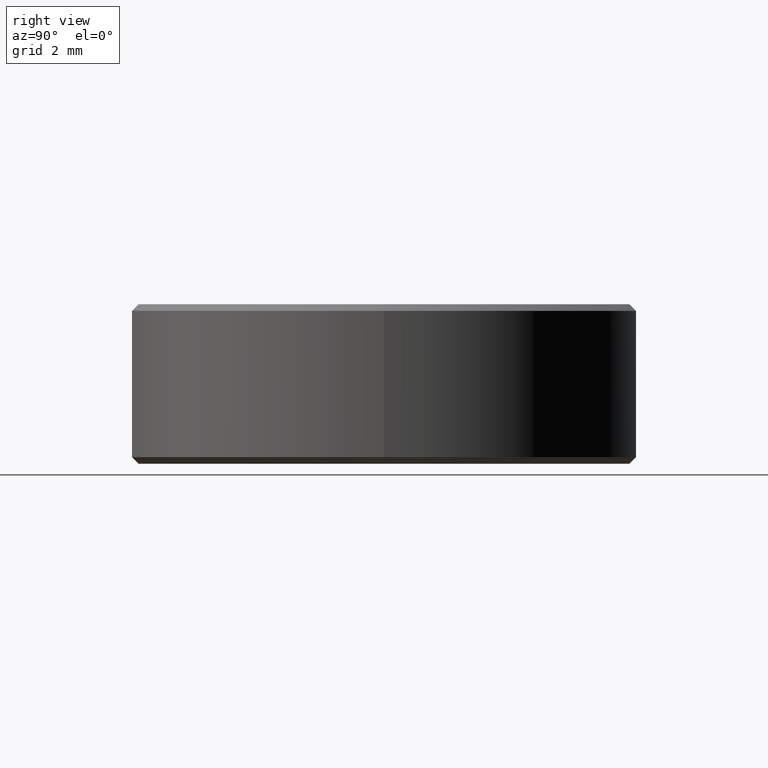
[diagram: clean part render]
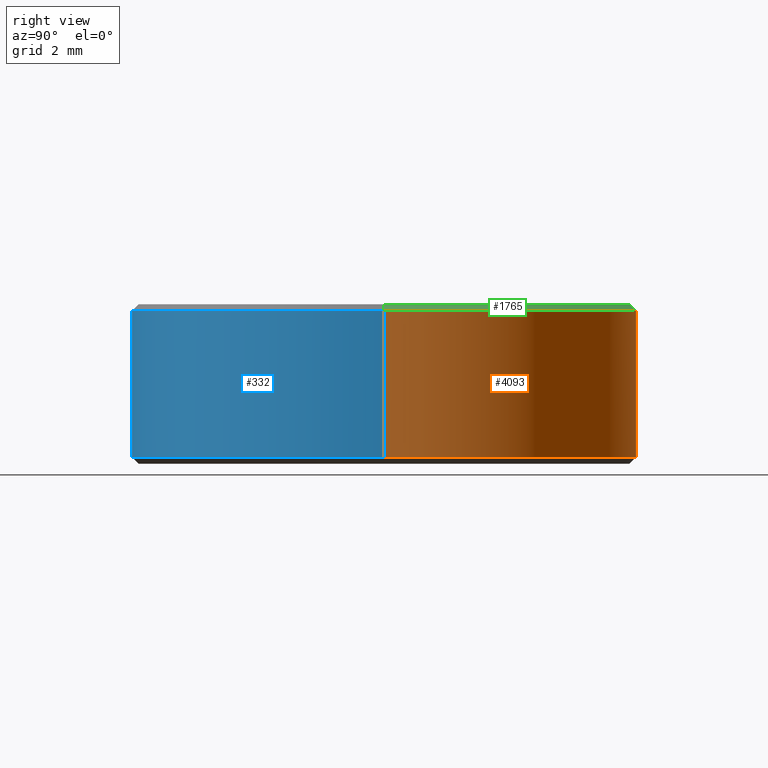
[diagram: same view with three faces highlighted in distinct colors, each labeled with its STEP entity id]
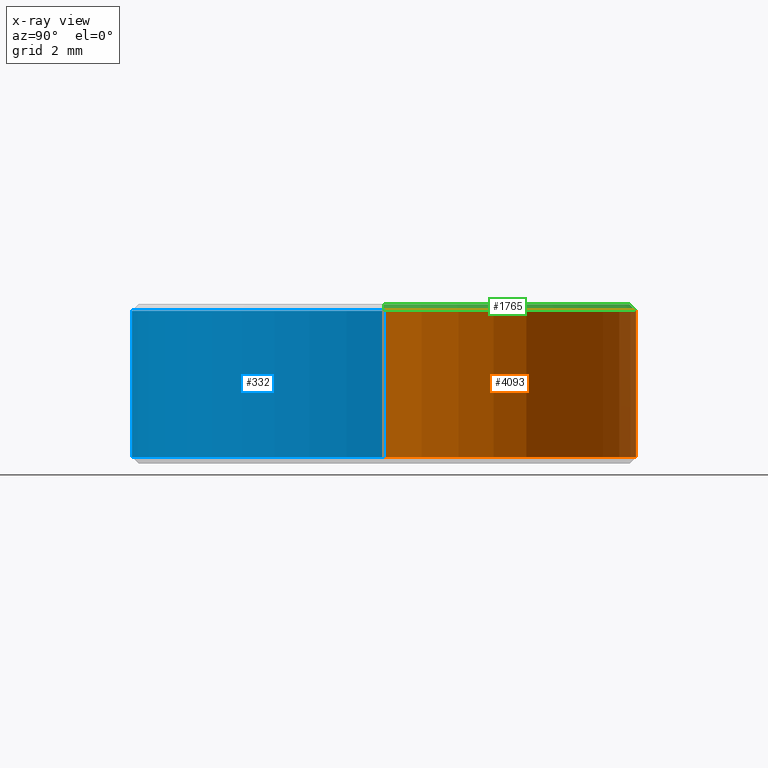
[diagram: x-ray of the same camera — body ghosted, the three highlighted faces saturated]
A machine part, right view with three faces highlighted in distinct colors.
The next image is the same camera in x-ray (body ghosted, the three faces saturated) — at least one of them is partly hidden behind the body in this view.
Their STEP definitions:

[orange] entity #4093 — the highlighted cylindrical surface (partial cylindrical patch) has radius 9.5 mm, axis along (-0, -0, -1).
#32 = ORIENTED_EDGE ( 'NONE', *, *, #6654, .T. ) ;
#287 = CIRCLE ( 'NONE', #3442, 0.3740157480314960600 ) ;
#439 = LINE ( 'NONE', #2743, #6531 ) ;
#462 = EDGE_CURVE ( 'NONE', #6852, #1652, #439, .T. ) ;
#484 = CARTESIAN_POINT ( 'NONE',  ( 0.3740157480314960600, 4.580371886574746100E-017, -0.1082677165354330700 ) ) ;
#637 = CARTESIAN_POINT ( 'NONE',  ( 0.0000000000000000000, 0.0000000000000000000, -0.1082677165354330700 ) ) ;
#784 = EDGE_CURVE ( 'NONE', #3050, #10040, #830, .T. ) ;
#830 = LINE ( 'NONE', #4259, #4783 ) ;
#1033 = DIRECTION ( 'NONE',  ( -0.0000000000000000000, -0.0000000000000000000, -1.000000000000000000 ) ) ;
#1325 = CARTESIAN_POINT ( 'NONE',  ( 0.0000000000000000000, 0.0000000000000000000, 0.1181102362204724500 ) ) ;
#1436 = DIRECTION ( 'NONE',  ( 1.000000000000000000, 0.0000000000000000000, 0.0000000000000000000 ) ) ;
#1652 = VERTEX_POINT ( 'NONE', #484 ) ;
#1663 = AXIS2_PLACEMENT_3D ( 'NONE', #1325, #8464, #9272 ) ;
#2470 = CARTESIAN_POINT ( 'NONE',  ( 0.0000000000000000000, 0.0000000000000000000, 0.1082677165354332000 ) ) ;
#2615 = CIRCLE ( 'NONE', #7795, 0.3740157480314960600 ) ;
#2743 = CARTESIAN_POINT ( 'NONE',  ( 0.3740157480314960600, 4.580371886574746100E-017, 0.1181102362204724500 ) ) ;
#3050 = VERTEX_POINT ( 'NONE', #4649 ) ;
#3265 = DIRECTION ( 'NONE',  ( 1.000000000000000000, 0.0000000000000000000, 0.0000000000000000000 ) ) ;
#3442 = AXIS2_PLACEMENT_3D ( 'NONE', #637, #6181, #1436 ) ;
#3797 = DIRECTION ( 'NONE',  ( -0.0000000000000000000, -0.0000000000000000000, -1.000000000000000000 ) ) ;
#4093 = ADVANCED_FACE ( 'NONE', ( #7949 ), #5813, .T. ) ;
#4259 = CARTESIAN_POINT ( 'NONE',  ( -0.3740157480314960600, 0.0000000000000000000, 0.1181102362204724500 ) ) ;
#4371 = EDGE_LOOP ( 'NONE', ( #32, #5225, #9327, #9508 ) ) ;
#4649 = CARTESIAN_POINT ( 'NONE',  ( -0.3740157480314960600, 0.0000000000000000000, 0.1082677165354332000 ) ) ;
#4783 = VECTOR ( 'NONE', #3797, 39.37007874015748100 ) ;
#5225 = ORIENTED_EDGE ( 'NONE', *, *, #462, .T. ) ;
#5813 = CYLINDRICAL_SURFACE ( 'NONE', #1663, 0.3740157480314960600 ) ;
#6181 = DIRECTION ( 'NONE',  ( -0.0000000000000000000, -0.0000000000000000000, 1.000000000000000000 ) ) ;
#6531 = VECTOR ( 'NONE', #1033, 39.37007874015748100 ) ;
#6654 = EDGE_CURVE ( 'NONE', #3050, #6852, #2615, .T. ) ;
#6695 = CARTESIAN_POINT ( 'NONE',  ( 0.3740157480314960600, 4.580371886574746100E-017, 0.1082677165354332000 ) ) ;
#6852 = VERTEX_POINT ( 'NONE', #6695 ) ;
#7086 = CARTESIAN_POINT ( 'NONE',  ( -0.3740157480314960600, 0.0000000000000000000, -0.1082677165354330700 ) ) ;
#7795 = AXIS2_PLACEMENT_3D ( 'NONE', #2470, #8036, #3265 ) ;
#7949 = FACE_OUTER_BOUND ( 'NONE', #4371, .T. ) ;
#8036 = DIRECTION ( 'NONE',  ( 0.0000000000000000000, 0.0000000000000000000, -1.000000000000000000 ) ) ;
#8154 = EDGE_CURVE ( 'NONE', #1652, #10040, #287, .T. ) ;
#8464 = DIRECTION ( 'NONE',  ( -0.0000000000000000000, -0.0000000000000000000, -1.000000000000000000 ) ) ;
#9272 = DIRECTION ( 'NONE',  ( -1.000000000000000000, 0.0000000000000000000, 0.0000000000000000000 ) ) ;
#9327 = ORIENTED_EDGE ( 'NONE', *, *, #8154, .T. ) ;
#9508 = ORIENTED_EDGE ( 'NONE', *, *, #784, .F. ) ;
#10040 = VERTEX_POINT ( 'NONE', #7086 ) ;

[blue] entity #332 — the highlighted cylindrical surface (partial cylindrical patch) has radius 9.5 mm, axis along (-0, -0, -1).
#332 = ADVANCED_FACE ( 'NONE', ( #9400 ), #957, .T. ) ;
#439 = LINE ( 'NONE', #2743, #6531 ) ;
#462 = EDGE_CURVE ( 'NONE', #6852, #1652, #439, .T. ) ;
#484 = CARTESIAN_POINT ( 'NONE',  ( 0.3740157480314960600, 4.580371886574746100E-017, -0.1082677165354330700 ) ) ;
#525 = DIRECTION ( 'NONE',  ( -1.000000000000000000, 0.0000000000000000000, 0.0000000000000000000 ) ) ;
#784 = EDGE_CURVE ( 'NONE', #3050, #10040, #830, .T. ) ;
#830 = LINE ( 'NONE', #4259, #4783 ) ;
#957 = CYLINDRICAL_SURFACE ( 'NONE', #2501, 0.3740157480314960600 ) ;
#1033 = DIRECTION ( 'NONE',  ( -0.0000000000000000000, -0.0000000000000000000, -1.000000000000000000 ) ) ;
#1652 = VERTEX_POINT ( 'NONE', #484 ) ;
#1664 = ORIENTED_EDGE ( 'NONE', *, *, #9497, .T. ) ;
#1873 = CIRCLE ( 'NONE', #9982, 0.3740157480314960600 ) ;
#2176 = CARTESIAN_POINT ( 'NONE',  ( 0.0000000000000000000, 0.0000000000000000000, -0.1082677165354330700 ) ) ;
#2281 = EDGE_LOOP ( 'NONE', ( #5984, #5937, #7576, #1664 ) ) ;
#2501 = AXIS2_PLACEMENT_3D ( 'NONE', #6184, #6885, #525 ) ;
#2743 = CARTESIAN_POINT ( 'NONE',  ( 0.3740157480314960600, 4.580371886574746100E-017, 0.1181102362204724500 ) ) ;
#2963 = DIRECTION ( 'NONE',  ( 1.000000000000000000, 0.0000000000000000000, 0.0000000000000000000 ) ) ;
#3050 = VERTEX_POINT ( 'NONE', #4649 ) ;
#3290 = EDGE_CURVE ( 'NONE', #6852, #3050, #3468, .T. ) ;
#3468 = CIRCLE ( 'NONE', #4694, 0.3740157480314960600 ) ;
#3681 = CARTESIAN_POINT ( 'NONE',  ( 0.0000000000000000000, 0.0000000000000000000, 0.1082677165354332000 ) ) ;
#3797 = DIRECTION ( 'NONE',  ( -0.0000000000000000000, -0.0000000000000000000, -1.000000000000000000 ) ) ;
#4259 = CARTESIAN_POINT ( 'NONE',  ( -0.3740157480314960600, 0.0000000000000000000, 0.1181102362204724500 ) ) ;
#4494 = DIRECTION ( 'NONE',  ( 1.000000000000000000, 0.0000000000000000000, 0.0000000000000000000 ) ) ;
#4649 = CARTESIAN_POINT ( 'NONE',  ( -0.3740157480314960600, 0.0000000000000000000, 0.1082677165354332000 ) ) ;
#4694 = AXIS2_PLACEMENT_3D ( 'NONE', #3681, #9259, #4494 ) ;
#4783 = VECTOR ( 'NONE', #3797, 39.37007874015748100 ) ;
#5937 = ORIENTED_EDGE ( 'NONE', *, *, #3290, .T. ) ;
#5984 = ORIENTED_EDGE ( 'NONE', *, *, #462, .F. ) ;
#6184 = CARTESIAN_POINT ( 'NONE',  ( 0.0000000000000000000, 0.0000000000000000000, 0.1181102362204724500 ) ) ;
#6531 = VECTOR ( 'NONE', #1033, 39.37007874015748100 ) ;
#6695 = CARTESIAN_POINT ( 'NONE',  ( 0.3740157480314960600, 4.580371886574746100E-017, 0.1082677165354332000 ) ) ;
#6852 = VERTEX_POINT ( 'NONE', #6695 ) ;
#6885 = DIRECTION ( 'NONE',  ( -0.0000000000000000000, -0.0000000000000000000, -1.000000000000000000 ) ) ;
#7086 = CARTESIAN_POINT ( 'NONE',  ( -0.3740157480314960600, 0.0000000000000000000, -0.1082677165354330700 ) ) ;
#7576 = ORIENTED_EDGE ( 'NONE', *, *, #784, .T. ) ;
#7744 = DIRECTION ( 'NONE',  ( -0.0000000000000000000, -0.0000000000000000000, 1.000000000000000000 ) ) ;
#9259 = DIRECTION ( 'NONE',  ( 0.0000000000000000000, 0.0000000000000000000, -1.000000000000000000 ) ) ;
#9400 = FACE_OUTER_BOUND ( 'NONE', #2281, .T. ) ;
#9497 = EDGE_CURVE ( 'NONE', #10040, #1652, #1873, .T. ) ;
#9982 = AXIS2_PLACEMENT_3D ( 'NONE', #2176, #7744, #2963 ) ;
#10040 = VERTEX_POINT ( 'NONE', #7086 ) ;

[green] entity #1765 — the highlighted conical surface has half-angle 45 deg.
#272 = EDGE_CURVE ( 'NONE', #7635, #926, #5651, .T. ) ;
#354 = DIRECTION ( 'NONE',  ( 1.000000000000000000, 0.0000000000000000000, 0.0000000000000000000 ) ) ;
#642 = CARTESIAN_POINT ( 'NONE',  ( 0.0000000000000000000, 0.0000000000000000000, 0.1181102362204724500 ) ) ;
#926 = VERTEX_POINT ( 'NONE', #7121 ) ;
#960 = EDGE_LOOP ( 'NONE', ( #5825, #4646, #1693, #10245 ) ) ;
#1424 = CONICAL_SURFACE ( 'NONE', #6369, 0.3641732283464568800, 0.7853981633974447300 ) ;
#1474 = EDGE_CURVE ( 'NONE', #926, #3050, #7168, .T. ) ;
#1693 = ORIENTED_EDGE ( 'NONE', *, *, #6654, .F. ) ;
#1765 = ADVANCED_FACE ( 'NONE', ( #8012 ), #1424, .T. ) ;
#1842 = CARTESIAN_POINT ( 'NONE',  ( 0.3641732283464568800, 4.459835784296465500E-017, 0.1181102362204724500 ) ) ;
#2104 = DIRECTION ( 'NONE',  ( 0.7071067811865450200, 8.659560562354903300E-017, -0.7071067811865499000 ) ) ;
#2152 = CARTESIAN_POINT ( 'NONE',  ( 0.3641732283464568800, 4.520103835435605500E-017, 0.1181102362204724500 ) ) ;
#2470 = CARTESIAN_POINT ( 'NONE',  ( 0.0000000000000000000, 0.0000000000000000000, 0.1082677165354332000 ) ) ;
#2471 = EDGE_CURVE ( 'NONE', #7635, #6852, #7559, .T. ) ;
#2615 = CIRCLE ( 'NONE', #7795, 0.3740157480314960600 ) ;
#3050 = VERTEX_POINT ( 'NONE', #4649 ) ;
#3265 = DIRECTION ( 'NONE',  ( 1.000000000000000000, 0.0000000000000000000, 0.0000000000000000000 ) ) ;
#3419 = CARTESIAN_POINT ( 'NONE',  ( 0.0000000000000000000, 0.0000000000000000000, 0.1181102362204724500 ) ) ;
#4576 = DIRECTION ( 'NONE',  ( -0.7071067811865450200, 0.0000000000000000000, -0.7071067811865499000 ) ) ;
#4646 = ORIENTED_EDGE ( 'NONE', *, *, #2471, .T. ) ;
#4649 = CARTESIAN_POINT ( 'NONE',  ( -0.3740157480314960600, 0.0000000000000000000, 0.1082677165354332000 ) ) ;
#4744 = DIRECTION ( 'NONE',  ( 0.0000000000000000000, 0.0000000000000000000, -1.000000000000000000 ) ) ;
#5008 = VECTOR ( 'NONE', #4576, 39.37007874015748900 ) ;
#5123 = CARTESIAN_POINT ( 'NONE',  ( -0.3641732283464568800, 0.0000000000000000000, 0.1181102362204724500 ) ) ;
#5651 = CIRCLE ( 'NONE', #9643, 0.3641732283464568800 ) ;
#5825 = ORIENTED_EDGE ( 'NONE', *, *, #272, .F. ) ;
#6369 = AXIS2_PLACEMENT_3D ( 'NONE', #3419, #4744, #8744 ) ;
#6654 = EDGE_CURVE ( 'NONE', #3050, #6852, #2615, .T. ) ;
#6695 = CARTESIAN_POINT ( 'NONE',  ( 0.3740157480314960600, 4.580371886574746100E-017, 0.1082677165354332000 ) ) ;
#6852 = VERTEX_POINT ( 'NONE', #6695 ) ;
#7121 = CARTESIAN_POINT ( 'NONE',  ( -0.3641732283464568800, 0.0000000000000000000, 0.1181102362204724500 ) ) ;
#7168 = LINE ( 'NONE', #5123, #5008 ) ;
#7559 = LINE ( 'NONE', #1842, #9593 ) ;
#7635 = VERTEX_POINT ( 'NONE', #2152 ) ;
#7795 = AXIS2_PLACEMENT_3D ( 'NONE', #2470, #8036, #3265 ) ;
#8012 = FACE_OUTER_BOUND ( 'NONE', #960, .T. ) ;
#8036 = DIRECTION ( 'NONE',  ( 0.0000000000000000000, 0.0000000000000000000, -1.000000000000000000 ) ) ;
#8432 = DIRECTION ( 'NONE',  ( 0.0000000000000000000, 0.0000000000000000000, 1.000000000000000000 ) ) ;
#8744 = DIRECTION ( 'NONE',  ( -1.000000000000000000, 0.0000000000000000000, 0.0000000000000000000 ) ) ;
#9593 = VECTOR ( 'NONE', #2104, 39.37007874015748900 ) ;
#9643 = AXIS2_PLACEMENT_3D ( 'NONE', #642, #8432, #354 ) ;
#10245 = ORIENTED_EDGE ( 'NONE', *, *, #1474, .F. ) ;